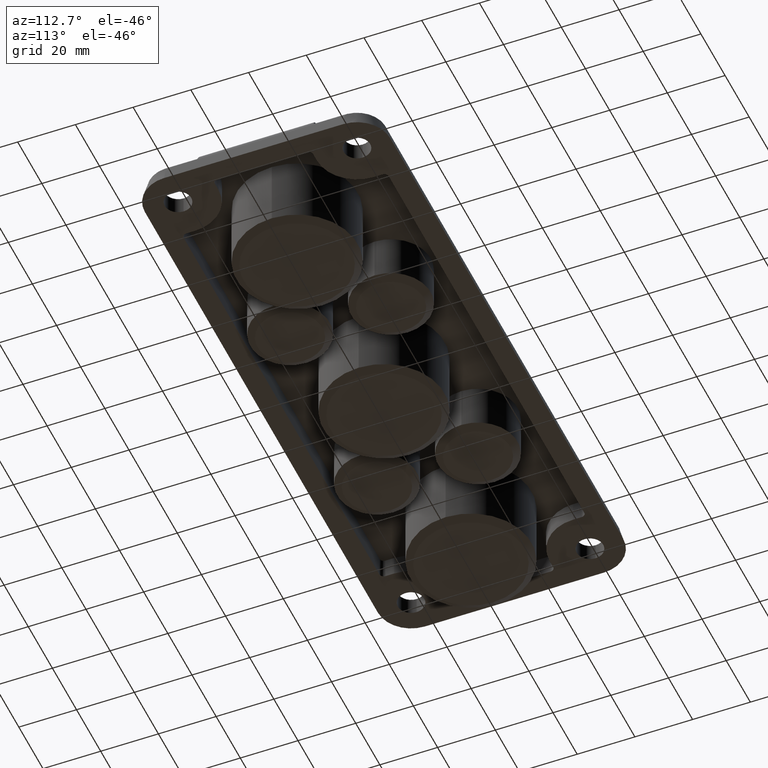
[diagram: clean part render]
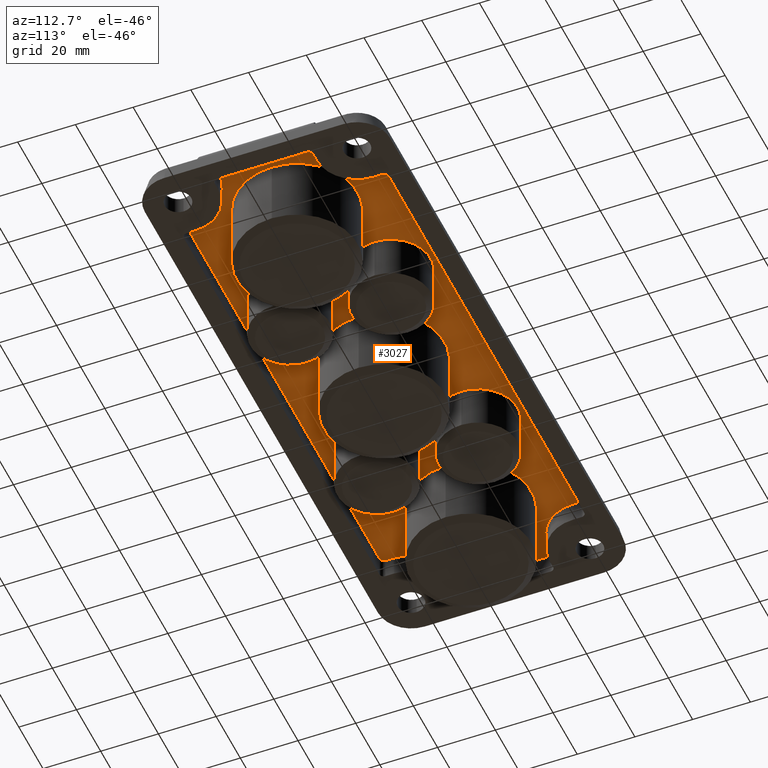
[diagram: same view with one face highlighted and labeled with its STEP entity id]
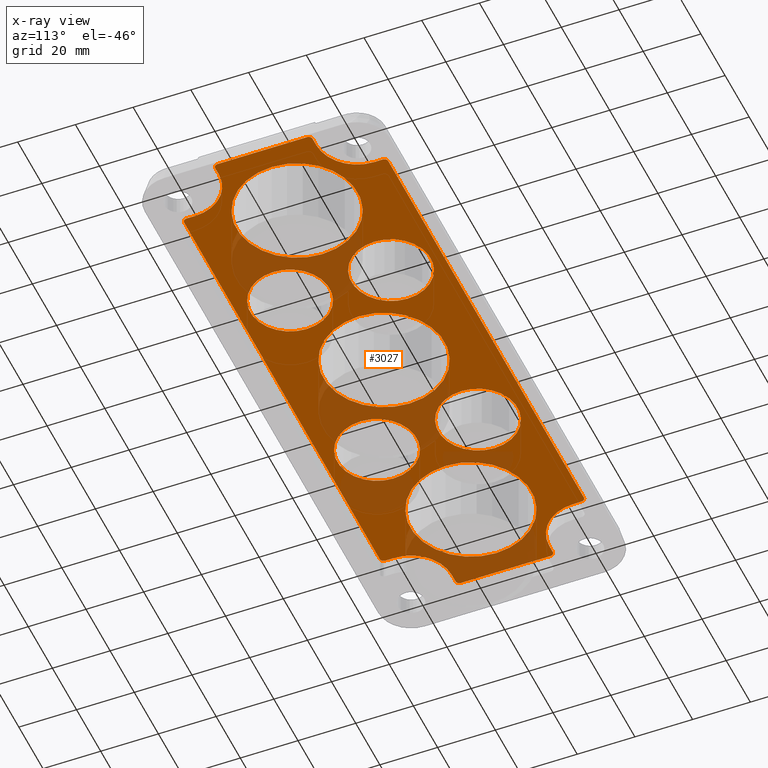
[diagram: x-ray of the same camera — body ghosted, the highlighted face saturated]
A machine part, auxiliary view. The second image highlights one B-rep face of the part: STEP entity #3027.
The next image is the same camera in x-ray: the body ghosted, the highlighted face saturated — about 29% of this face is hidden behind the body in this view.
In plain terms, the highlighted planar face has unit normal (-0, 0, -1).
Its self-contained STEP definition (entity closure, byte-faithful):
#10 = CIRCLE ( 'NONE', #1880, 13.74999999999999800 ) ;
#12 = DIRECTION ( 'NONE',  ( 4.625929269271556300E-015, 1.000000000000000000, 0.0000000000000000000 ) ) ;
#48 = CARTESIAN_POINT ( 'NONE',  ( -49.75000000000001400, -17.50000000000001100, 7.000000000000000900 ) ) ;
#49 = CIRCLE ( 'NONE', #2431, 14.12218545449751900 ) ;
#58 = DIRECTION ( 'NONE',  ( -1.000000000000000000, 0.0000000000000000000, 0.0000000000000000000 ) ) ;
#62 = EDGE_CURVE ( 'NONE', #434, #2535, #10, .T. ) ;
#86 = CIRCLE ( 'NONE', #1689, 14.12218545449751900 ) ;
#88 = DIRECTION ( 'NONE',  ( 0.0000000000000000000, -1.000000000000000000, 0.0000000000000000000 ) ) ;
#94 = LINE ( 'NONE', #390, #1280 ) ;
#100 = ORIENTED_EDGE ( 'NONE', *, *, #2618, .F. ) ;
#113 = VERTEX_POINT ( 'NONE', #3493 ) ;
#121 = DIRECTION ( 'NONE',  ( -4.625929269271567400E-015, -1.000000000000000000, 0.0000000000000000000 ) ) ;
#136 = CIRCLE ( 'NONE', #634, 1.377814545502537000 ) ;
#151 = DIRECTION ( 'NONE',  ( -1.000000000000000000, 0.0000000000000000000, 0.0000000000000000000 ) ) ;
#157 = DIRECTION ( 'NONE',  ( -1.000000000000000000, -3.469446951953611400E-015, 0.0000000000000000000 ) ) ;
#189 = EDGE_LOOP ( 'NONE', ( #1481, #599, #2038, #1383, #2303, #1949, #2044, #1434, #681, #632, #2740, #1316, #327, #2286, #1334, #748, #286, #196, #635, #1374, #2411, #733, #2052, #3254 ) ) ;
#191 = CARTESIAN_POINT ( 'NONE',  ( -96.50000000000000000, -31.00000000000000000, 7.000000000000000000 ) ) ;
#193 = DIRECTION ( 'NONE',  ( -1.000000000000000000, 0.0000000000000000000, 0.0000000000000000000 ) ) ;
#196 = ORIENTED_EDGE ( 'NONE', *, *, #3258, .F. ) ;
#199 = EDGE_CURVE ( 'NONE', #1894, #113, #222, .T. ) ;
#200 = DIRECTION ( 'NONE',  ( -0.0000000000000000000, -0.0000000000000000000, -1.000000000000000000 ) ) ;
#222 = LINE ( 'NONE', #2072, #3204 ) ;
#234 = DIRECTION ( 'NONE',  ( -0.0000000000000000000, -0.0000000000000000000, -1.000000000000000000 ) ) ;
#273 = CARTESIAN_POINT ( 'NONE',  ( 100.8778145455024900, 15.49999999999999800, 7.000000000000000000 ) ) ;
#277 = VECTOR ( 'NONE', #335, 1000.000000000000000 ) ;
#280 = CARTESIAN_POINT ( 'NONE',  ( 99.50000000000000000, -16.87781454550244200, 7.000000000000000000 ) ) ;
#286 = ORIENTED_EDGE ( 'NONE', *, *, #2893, .F. ) ;
#301 = CARTESIAN_POINT ( 'NONE',  ( -49.75000000000000000, 17.49999999999999600, 7.000000000000000900 ) ) ;
#306 = CIRCLE ( 'NONE', #486, 21.00000000000000400 ) ;
#310 = CARTESIAN_POINT ( 'NONE',  ( -72.00000000000000000, -8.817165747521116300E-015, 6.999999999999999100 ) ) ;
#327 = ORIENTED_EDGE ( 'NONE', *, *, #2199, .F. ) ;
#335 = DIRECTION ( 'NONE',  ( -4.625929269271567400E-015, 1.000000000000000000, 0.0000000000000000000 ) ) ;
#348 = CIRCLE ( 'NONE', #3056, 14.12218545449751900 ) ;
#373 = VERTEX_POINT ( 'NONE', #3552 ) ;
#376 = DIRECTION ( 'NONE',  ( -1.000000000000000000, 0.0000000000000000000, 0.0000000000000000000 ) ) ;
#383 = DIRECTION ( 'NONE',  ( 1.000000000000000000, 5.782411586589352500E-015, 0.0000000000000000000 ) ) ;
#389 = FACE_BOUND ( 'NONE', #2318, .T. ) ;
#390 = CARTESIAN_POINT ( 'NONE',  ( -100.8778145455024900, 15.49999999999999800, 7.000000000000000000 ) ) ;
#400 = VERTEX_POINT ( 'NONE', #967 ) ;
#405 = CARTESIAN_POINT ( 'NONE',  ( -81.00000000000000000, 33.99999999999995000, 7.000000000000000000 ) ) ;
#423 = CARTESIAN_POINT ( 'NONE',  ( 81.00000000000000000, 33.99999999999995000, 7.000000000000000000 ) ) ;
#430 = DIRECTION ( 'NONE',  ( -1.000000000000000000, 0.0000000000000000000, 0.0000000000000000000 ) ) ;
#431 = CARTESIAN_POINT ( 'NONE',  ( 96.50000000000000000, 16.87781454550247400, 7.000000000000000000 ) ) ;
#434 = VERTEX_POINT ( 'NONE', #2082 ) ;
#445 = EDGE_CURVE ( 'NONE', #2692, #2633, #1954, .T. ) ;
#452 = CARTESIAN_POINT ( 'NONE',  ( 50.99999999999999300, 1.138892402573055900E-014, 6.999999999999999100 ) ) ;
#482 = CARTESIAN_POINT ( 'NONE',  ( -82.37781454550250300, -33.99999999999993600, 7.000000000000000000 ) ) ;
#486 = AXIS2_PLACEMENT_3D ( 'NONE', #1745, #3163, #58 ) ;
#492 = CARTESIAN_POINT ( 'NONE',  ( 81.00000000000001400, -33.99999999999993600, 7.000000000000000000 ) ) ;
#518 = DIRECTION ( 'NONE',  ( -1.000000000000000000, 0.0000000000000000000, 0.0000000000000000000 ) ) ;
#527 = LINE ( 'NONE', #1660, #277 ) ;
#530 = VERTEX_POINT ( 'NONE', #3094 ) ;
#566 = DIRECTION ( 'NONE',  ( -1.000000000000000000, 0.0000000000000000000, 0.0000000000000000000 ) ) ;
#582 = CARTESIAN_POINT ( 'NONE',  ( 82.37781454550250300, -33.99999999999993600, 7.000000000000000000 ) ) ;
#593 = EDGE_CURVE ( 'NONE', #1544, #896, #1568, .T. ) ;
#599 = ORIENTED_EDGE ( 'NONE', *, *, #3221, .F. ) ;
#601 = CARTESIAN_POINT ( 'NONE',  ( 100.8778145455024900, 15.49999999999999800, 7.000000000000000000 ) ) ;
#603 = CARTESIAN_POINT ( 'NONE',  ( -36.00000000000001400, -17.50000000000001100, 7.000000000000000900 ) ) ;
#613 = CARTESIAN_POINT ( 'NONE',  ( 81.00000000000001400, -35.37781454550246700, 7.000000000000000000 ) ) ;
#615 = VERTEX_POINT ( 'NONE', #613 ) ;
#632 = ORIENTED_EDGE ( 'NONE', *, *, #2024, .F. ) ;
#634 = AXIS2_PLACEMENT_3D ( 'NONE', #492, #1264, #3318 ) ;
#635 = ORIENTED_EDGE ( 'NONE', *, *, #1833, .F. ) ;
#647 = CARTESIAN_POINT ( 'NONE',  ( 0.0000000000000000000, 0.0000000000000000000, 6.999999999999999100 ) ) ;
#665 = EDGE_LOOP ( 'NONE', ( #1864, #928 ) ) ;
#673 = EDGE_LOOP ( 'NONE', ( #1201, #1500 ) ) ;
#681 = ORIENTED_EDGE ( 'NONE', *, *, #2468, .F. ) ;
#682 = LINE ( 'NONE', #3222, #3226 ) ;
#687 = CARTESIAN_POINT ( 'NONE',  ( 99.50000000000000000, 15.49999999999999800, 7.000000000000000000 ) ) ;
#706 = EDGE_CURVE ( 'NONE', #3216, #2680, #2795, .T. ) ;
#716 = LINE ( 'NONE', #482, #2823 ) ;
#720 = LINE ( 'NONE', #2319, #2283 ) ;
#725 = CIRCLE ( 'NONE', #2140, 13.74999999999999800 ) ;
#733 = ORIENTED_EDGE ( 'NONE', *, *, #199, .F. ) ;
#737 = AXIS2_PLACEMENT_3D ( 'NONE', #647, #2590, #1527 ) ;
#748 = ORIENTED_EDGE ( 'NONE', *, *, #2868, .F. ) ;
#753 = EDGE_CURVE ( 'NONE', #2643, #1137, #2703, .T. ) ;
#760 = VERTEX_POINT ( 'NONE', #1610 ) ;
#763 = EDGE_CURVE ( 'NONE', #1095, #1866, #1747, .T. ) ;
#777 = DIRECTION ( 'NONE',  ( -1.000000000000000000, 0.0000000000000000000, 0.0000000000000000000 ) ) ;
#781 = ORIENTED_EDGE ( 'NONE', *, *, #62, .F. ) ;
#785 = CARTESIAN_POINT ( 'NONE',  ( -99.50000000000000000, -15.49999999999997300, 7.000000000000000000 ) ) ;
#794 = CARTESIAN_POINT ( 'NONE',  ( 22.24999999999999600, -17.50000000000001100, 7.000000000000000900 ) ) ;
#795 = VECTOR ( 'NONE', #2165, 1000.000000000000000 ) ;
#796 = VECTOR ( 'NONE', #2064, 1000.000000000000000 ) ;
#800 = VECTOR ( 'NONE', #12, 1000.000000000000000 ) ;
#801 = CARTESIAN_POINT ( 'NONE',  ( 0.0000000000000000000, 0.0000000000000000000, 6.999999999999999100 ) ) ;
#825 = CARTESIAN_POINT ( 'NONE',  ( 72.00000000000000000, 8.817165747521117800E-015, 6.999999999999999100 ) ) ;
#828 = CARTESIAN_POINT ( 'NONE',  ( -100.8778145455024700, -15.49999999999997300, 7.000000000000000000 ) ) ;
#847 = DIRECTION ( 'NONE',  ( -1.000000000000000000, 0.0000000000000000000, 0.0000000000000000000 ) ) ;
#877 = CARTESIAN_POINT ( 'NONE',  ( 35.99999999999998600, 17.50000000000000700, 7.000000000000000900 ) ) ;
#878 = CARTESIAN_POINT ( 'NONE',  ( 82.37781454550250300, -33.99999999999993600, 7.000000000000000000 ) ) ;
#896 = VERTEX_POINT ( 'NONE', #2852 ) ;
#914 = EDGE_CURVE ( 'NONE', #2254, #3541, #527, .T. ) ;
#923 = ORIENTED_EDGE ( 'NONE', *, *, #1586, .F. ) ;
#928 = ORIENTED_EDGE ( 'NONE', *, *, #763, .F. ) ;
#953 = DIRECTION ( 'NONE',  ( -1.000000000000000000, 0.0000000000000000000, 0.0000000000000000000 ) ) ;
#954 = ORIENTED_EDGE ( 'NONE', *, *, #445, .F. ) ;
#958 = CARTESIAN_POINT ( 'NONE',  ( -72.00000000000000000, -8.817165747521116300E-015, 6.999999999999999100 ) ) ;
#967 = CARTESIAN_POINT ( 'NONE',  ( -82.37781454550251700, -30.99999999999996100, 7.000000000000000000 ) ) ;
#968 = DIRECTION ( 'NONE',  ( 0.0000000000000000000, 0.0000000000000000000, 1.000000000000000000 ) ) ;
#1027 = VERTEX_POINT ( 'NONE', #2522 ) ;
#1057 = DIRECTION ( 'NONE',  ( -1.000000000000000000, 0.0000000000000000000, 0.0000000000000000000 ) ) ;
#1072 = CIRCLE ( 'NONE', #2983, 1.377814545502467500 ) ;
#1073 = DIRECTION ( 'NONE',  ( 0.0000000000000000000, 0.0000000000000000000, 1.000000000000000000 ) ) ;
#1094 = EDGE_CURVE ( 'NONE', #2535, #434, #2003, .T. ) ;
#1095 = VERTEX_POINT ( 'NONE', #1679 ) ;
#1103 = AXIS2_PLACEMENT_3D ( 'NONE', #1349, #2478, #566 ) ;
#1113 = EDGE_CURVE ( 'NONE', #896, #1544, #3582, .T. ) ;
#1117 = DIRECTION ( 'NONE',  ( -0.0000000000000000000, -0.0000000000000000000, -1.000000000000000000 ) ) ;
#1124 = DIRECTION ( 'NONE',  ( -1.000000000000000000, 0.0000000000000000000, 0.0000000000000000000 ) ) ;
#1136 = VERTEX_POINT ( 'NONE', #828 ) ;
#1137 = VERTEX_POINT ( 'NONE', #2495 ) ;
#1144 = VERTEX_POINT ( 'NONE', #2172 ) ;
#1177 = DIRECTION ( 'NONE',  ( -1.000000000000000000, 0.0000000000000000000, 0.0000000000000000000 ) ) ;
#1198 = LINE ( 'NONE', #3033, #795 ) ;
#1199 = FACE_BOUND ( 'NONE', #2844, .T. ) ;
#1201 = ORIENTED_EDGE ( 'NONE', *, *, #2678, .F. ) ;
#1202 = CIRCLE ( 'NONE', #2037, 1.377814545502537000 ) ;
#1208 = DIRECTION ( 'NONE',  ( 0.0000000000000000000, 0.0000000000000000000, 1.000000000000000000 ) ) ;
#1241 = CIRCLE ( 'NONE', #2018, 13.74999999999999800 ) ;
#1252 = AXIS2_PLACEMENT_3D ( 'NONE', #191, #200, #2109 ) ;
#1264 = DIRECTION ( 'NONE',  ( 0.0000000000000000000, 0.0000000000000000000, 1.000000000000000000 ) ) ;
#1276 = CIRCLE ( 'NONE', #2078, 1.377814545502537000 ) ;
#1280 = VECTOR ( 'NONE', #88, 1000.000000000000000 ) ;
#1282 = AXIS2_PLACEMENT_3D ( 'NONE', #801, #234, #3301 ) ;
#1316 = ORIENTED_EDGE ( 'NONE', *, *, #3362, .F. ) ;
#1329 = VERTEX_POINT ( 'NONE', #3450 ) ;
#1334 = ORIENTED_EDGE ( 'NONE', *, *, #3459, .F. ) ;
#1349 = CARTESIAN_POINT ( 'NONE',  ( 36.00000000000000000, -17.50000000000001100, 7.000000000000000900 ) ) ;
#1360 = LINE ( 'NONE', #582, #800 ) ;
#1363 = CARTESIAN_POINT ( 'NONE',  ( 100.8778145455024900, -15.49999999999997300, 7.000000000000000000 ) ) ;
#1364 = EDGE_CURVE ( 'NONE', #113, #1838, #3118, .T. ) ;
#1367 = VERTEX_POINT ( 'NONE', #3611 ) ;
#1373 = CARTESIAN_POINT ( 'NONE',  ( 82.37781454550254500, 33.99999999999995000, 7.000000000000000000 ) ) ;
#1374 = ORIENTED_EDGE ( 'NONE', *, *, #1707, .F. ) ;
#1376 = ORIENTED_EDGE ( 'NONE', *, *, #2782, .F. ) ;
#1383 = ORIENTED_EDGE ( 'NONE', *, *, #2279, .F. ) ;
#1413 = LINE ( 'NONE', #431, #796 ) ;
#1434 = ORIENTED_EDGE ( 'NONE', *, *, #1794, .F. ) ;
#1442 = VERTEX_POINT ( 'NONE', #2180 ) ;
#1444 = DIRECTION ( 'NONE',  ( -1.000000000000000000, 0.0000000000000000000, 0.0000000000000000000 ) ) ;
#1451 = CARTESIAN_POINT ( 'NONE',  ( 81.00000000000000000, 35.37781454550253100, 7.000000000000000000 ) ) ;
#1461 = EDGE_LOOP ( 'NONE', ( #2691, #3034 ) ) ;
#1463 = CIRCLE ( 'NONE', #1252, 14.12218545449751900 ) ;
#1469 = DIRECTION ( 'NONE',  ( -1.000000000000000000, 0.0000000000000000000, 0.0000000000000000000 ) ) ;
#1481 = ORIENTED_EDGE ( 'NONE', *, *, #2287, .F. ) ;
#1499 = VERTEX_POINT ( 'NONE', #878 ) ;
#1500 = ORIENTED_EDGE ( 'NONE', *, *, #1672, .F. ) ;
#1503 = CARTESIAN_POINT ( 'NONE',  ( -82.37781454550248800, 31.00000000000000000, 7.000000000000000000 ) ) ;
#1515 = CARTESIAN_POINT ( 'NONE',  ( -81.00000000000001400, -33.99999999999993600, 7.000000000000000000 ) ) ;
#1525 = DIRECTION ( 'NONE',  ( -0.0000000000000000000, -0.0000000000000000000, -1.000000000000000000 ) ) ;
#1527 = DIRECTION ( 'NONE',  ( -1.000000000000000000, 0.0000000000000000000, 0.0000000000000000000 ) ) ;
#1544 = VERTEX_POINT ( 'NONE', #3382 ) ;
#1550 = AXIS2_PLACEMENT_3D ( 'NONE', #958, #1780, #1177 ) ;
#1568 = CIRCLE ( 'NONE', #1550, 21.00000000000000400 ) ;
#1586 = EDGE_CURVE ( 'NONE', #2633, #2692, #725, .T. ) ;
#1597 = CARTESIAN_POINT ( 'NONE',  ( 82.37781454550250300, 30.99999999999998200, 7.000000000000000000 ) ) ;
#1610 = CARTESIAN_POINT ( 'NONE',  ( 93.00000000000000000, 8.817165747521117800E-015, 6.999999999999999100 ) ) ;
#1617 = DIRECTION ( 'NONE',  ( 0.0000000000000000000, 1.000000000000000000, 0.0000000000000000000 ) ) ;
#1629 = VERTEX_POINT ( 'NONE', #3407 ) ;
#1639 = DIRECTION ( 'NONE',  ( -1.000000000000000000, 0.0000000000000000000, 0.0000000000000000000 ) ) ;
#1660 = CARTESIAN_POINT ( 'NONE',  ( 82.37781454550248800, 33.99999999999995000, 7.000000000000000000 ) ) ;
#1666 = CARTESIAN_POINT ( 'NONE',  ( -36.00000000000000000, 17.49999999999999600, 7.000000000000000900 ) ) ;
#1672 = EDGE_CURVE ( 'NONE', #3037, #3549, #2332, .T. ) ;
#1679 = CARTESIAN_POINT ( 'NONE',  ( -21.00000000000000000, 2.571758278209441700E-015, 6.999999999999999100 ) ) ;
#1689 = AXIS2_PLACEMENT_3D ( 'NONE', #1859, #2712, #777 ) ;
#1707 = EDGE_CURVE ( 'NONE', #1838, #2903, #3496, .T. ) ;
#1745 = CARTESIAN_POINT ( 'NONE',  ( 72.00000000000000000, 8.817165747521117800E-015, 6.999999999999999100 ) ) ;
#1747 = CIRCLE ( 'NONE', #1282, 21.00000000000000000 ) ;
#1774 = VERTEX_POINT ( 'NONE', #280 ) ;
#1777 = VERTEX_POINT ( 'NONE', #3114 ) ;
#1780 = DIRECTION ( 'NONE',  ( -0.0000000000000000000, -0.0000000000000000000, -1.000000000000000000 ) ) ;
#1788 = AXIS2_PLACEMENT_3D ( 'NONE', #2013, #3156, #3457 ) ;
#1794 = EDGE_CURVE ( 'NONE', #1499, #1144, #1360, .T. ) ;
#1797 = CARTESIAN_POINT ( 'NONE',  ( -36.00000000000001400, -17.50000000000001100, 7.000000000000000900 ) ) ;
#1799 = AXIS2_PLACEMENT_3D ( 'NONE', #310, #2800, #847 ) ;
#1833 = EDGE_CURVE ( 'NONE', #2903, #2828, #348, .T. ) ;
#1837 = FACE_BOUND ( 'NONE', #673, .T. ) ;
#1838 = VERTEX_POINT ( 'NONE', #3083 ) ;
#1848 = VECTOR ( 'NONE', #1617, 1000.000000000000000 ) ;
#1859 = CARTESIAN_POINT ( 'NONE',  ( 96.50000000000000000, -31.00000000000000000, 7.000000000000000000 ) ) ;
#1864 = ORIENTED_EDGE ( 'NONE', *, *, #2870, .F. ) ;
#1866 = VERTEX_POINT ( 'NONE', #3438 ) ;
#1880 = AXIS2_PLACEMENT_3D ( 'NONE', #1990, #2851, #2629 ) ;
#1894 = VERTEX_POINT ( 'NONE', #1451 ) ;
#1917 = DIRECTION ( 'NONE',  ( -1.000000000000000000, 0.0000000000000000000, 0.0000000000000000000 ) ) ;
#1949 = ORIENTED_EDGE ( 'NONE', *, *, #3015, .F. ) ;
#1954 = CIRCLE ( 'NONE', #2878, 13.74999999999999800 ) ;
#1987 = CIRCLE ( 'NONE', #2606, 13.74999999999999800 ) ;
#1990 = CARTESIAN_POINT ( 'NONE',  ( 36.00000000000000000, -17.50000000000001100, 7.000000000000000900 ) ) ;
#1994 = DIRECTION ( 'NONE',  ( -0.0000000000000000000, -0.0000000000000000000, -1.000000000000000000 ) ) ;
#2003 = CIRCLE ( 'NONE', #1103, 13.74999999999999800 ) ;
#2013 = CARTESIAN_POINT ( 'NONE',  ( -96.50000000000000000, 30.99999999999998900, 7.000000000000000000 ) ) ;
#2018 = AXIS2_PLACEMENT_3D ( 'NONE', #1666, #2456, #3593 ) ;
#2020 = LINE ( 'NONE', #273, #1848 ) ;
#2021 = FACE_BOUND ( 'NONE', #3506, .T. ) ;
#2024 = EDGE_CURVE ( 'NONE', #1367, #615, #3492, .T. ) ;
#2037 = AXIS2_PLACEMENT_3D ( 'NONE', #1515, #968, #2898 ) ;
#2038 = ORIENTED_EDGE ( 'NONE', *, *, #753, .F. ) ;
#2044 = ORIENTED_EDGE ( 'NONE', *, *, #2226, .F. ) ;
#2052 = ORIENTED_EDGE ( 'NONE', *, *, #3239, .F. ) ;
#2053 = DIRECTION ( 'NONE',  ( -1.000000000000000000, 0.0000000000000000000, 0.0000000000000000000 ) ) ;
#2064 = DIRECTION ( 'NONE',  ( -1.000000000000000000, 3.469446951953611400E-015, 0.0000000000000000000 ) ) ;
#2072 = CARTESIAN_POINT ( 'NONE',  ( -81.00000000000000000, 35.37781454550253100, 7.000000000000000000 ) ) ;
#2078 = AXIS2_PLACEMENT_3D ( 'NONE', #423, #2097, #2053 ) ;
#2082 = CARTESIAN_POINT ( 'NONE',  ( 49.75000000000000000, -17.50000000000001100, 7.000000000000000900 ) ) ;
#2097 = DIRECTION ( 'NONE',  ( 0.0000000000000000000, 0.0000000000000000000, 1.000000000000000000 ) ) ;
#2109 = DIRECTION ( 'NONE',  ( -1.000000000000000000, 0.0000000000000000000, 0.0000000000000000000 ) ) ;
#2140 = AXIS2_PLACEMENT_3D ( 'NONE', #603, #2809, #1444 ) ;
#2153 = DIRECTION ( 'NONE',  ( -0.0000000000000000000, -0.0000000000000000000, -1.000000000000000000 ) ) ;
#2156 = AXIS2_PLACEMENT_3D ( 'NONE', #3588, #2738, #193 ) ;
#2165 = DIRECTION ( 'NONE',  ( 1.000000000000000000, -5.782411586589352500E-015, 0.0000000000000000000 ) ) ;
#2172 = CARTESIAN_POINT ( 'NONE',  ( 82.37781454550248800, -30.99999999999997900, 7.000000000000000000 ) ) ;
#2180 = CARTESIAN_POINT ( 'NONE',  ( 96.49999999999997200, -16.87781454550245300, 7.000000000000000000 ) ) ;
#2194 = AXIS2_PLACEMENT_3D ( 'NONE', #785, #1073, #2819 ) ;
#2199 = EDGE_CURVE ( 'NONE', #1027, #400, #1463, .T. ) ;
#2226 = EDGE_CURVE ( 'NONE', #1144, #1442, #86, .T. ) ;
#2244 = EDGE_CURVE ( 'NONE', #1329, #1027, #1198, .T. ) ;
#2254 = VERTEX_POINT ( 'NONE', #1597 ) ;
#2271 = CARTESIAN_POINT ( 'NONE',  ( -96.50000000000000000, 31.00000000000000000, 7.000000000000000000 ) ) ;
#2279 = EDGE_CURVE ( 'NONE', #2499, #2643, #2020, .T. ) ;
#2283 = VECTOR ( 'NONE', #383, 1000.000000000000000 ) ;
#2286 = ORIENTED_EDGE ( 'NONE', *, *, #2244, .F. ) ;
#2287 = EDGE_CURVE ( 'NONE', #1629, #2254, #49, .T. ) ;
#2296 = PLANE ( 'NONE',  #1788 ) ;
#2303 = ORIENTED_EDGE ( 'NONE', *, *, #3282, .F. ) ;
#2318 = EDGE_LOOP ( 'NONE', ( #3507, #3516 ) ) ;
#2319 = CARTESIAN_POINT ( 'NONE',  ( 96.50000000000000000, -16.87781454550245300, 7.000000000000000000 ) ) ;
#2324 = FACE_BOUND ( 'NONE', #2331, .T. ) ;
#2331 = EDGE_LOOP ( 'NONE', ( #923, #954 ) ) ;
#2332 = CIRCLE ( 'NONE', #2694, 13.74999999999999800 ) ;
#2411 = ORIENTED_EDGE ( 'NONE', *, *, #1364, .F. ) ;
#2431 = AXIS2_PLACEMENT_3D ( 'NONE', #3584, #2153, #1917 ) ;
#2456 = DIRECTION ( 'NONE',  ( -0.0000000000000000000, -0.0000000000000000000, -1.000000000000000000 ) ) ;
#2458 = AXIS2_PLACEMENT_3D ( 'NONE', #3571, #2971, #3256 ) ;
#2468 = EDGE_CURVE ( 'NONE', #615, #1499, #136, .T. ) ;
#2478 = DIRECTION ( 'NONE',  ( -0.0000000000000000000, -0.0000000000000000000, -1.000000000000000000 ) ) ;
#2495 = CARTESIAN_POINT ( 'NONE',  ( 99.50000000000000000, 16.87781454550246400, 7.000000000000000000 ) ) ;
#2499 = VERTEX_POINT ( 'NONE', #1363 ) ;
#2522 = CARTESIAN_POINT ( 'NONE',  ( -96.50000000000000000, -16.87781454550247800, 7.000000000000000000 ) ) ;
#2535 = VERTEX_POINT ( 'NONE', #794 ) ;
#2558 = DIRECTION ( 'NONE',  ( 0.0000000000000000000, 0.0000000000000000000, 1.000000000000000000 ) ) ;
#2590 = DIRECTION ( 'NONE',  ( -0.0000000000000000000, -0.0000000000000000000, -1.000000000000000000 ) ) ;
#2591 = DIRECTION ( 'NONE',  ( -0.0000000000000000000, -0.0000000000000000000, -1.000000000000000000 ) ) ;
#2603 = AXIS2_PLACEMENT_3D ( 'NONE', #687, #2558, #1057 ) ;
#2606 = AXIS2_PLACEMENT_3D ( 'NONE', #877, #3337, #1124 ) ;
#2616 = CARTESIAN_POINT ( 'NONE',  ( 22.24999999999998200, 17.50000000000000700, 7.000000000000000900 ) ) ;
#2618 = EDGE_CURVE ( 'NONE', #760, #3211, #2775, .T. ) ;
#2629 = DIRECTION ( 'NONE',  ( -1.000000000000000000, 0.0000000000000000000, 0.0000000000000000000 ) ) ;
#2633 = VERTEX_POINT ( 'NONE', #2797 ) ;
#2641 = VECTOR ( 'NONE', #3557, 1000.000000000000000 ) ;
#2643 = VERTEX_POINT ( 'NONE', #601 ) ;
#2663 = CARTESIAN_POINT ( 'NONE',  ( -22.24999999999999600, 17.49999999999999600, 7.000000000000000900 ) ) ;
#2678 = EDGE_CURVE ( 'NONE', #3549, #3037, #1987, .T. ) ;
#2680 = VERTEX_POINT ( 'NONE', #301 ) ;
#2691 = ORIENTED_EDGE ( 'NONE', *, *, #593, .F. ) ;
#2692 = VERTEX_POINT ( 'NONE', #48 ) ;
#2694 = AXIS2_PLACEMENT_3D ( 'NONE', #3165, #2591, #1469 ) ;
#2703 = CIRCLE ( 'NONE', #2603, 1.377814545502467500 ) ;
#2712 = DIRECTION ( 'NONE',  ( -0.0000000000000000000, -0.0000000000000000000, -1.000000000000000000 ) ) ;
#2713 = ORIENTED_EDGE ( 'NONE', *, *, #1094, .F. ) ;
#2723 = AXIS2_PLACEMENT_3D ( 'NONE', #825, #1117, #1639 ) ;
#2738 = DIRECTION ( 'NONE',  ( -0.0000000000000000000, -0.0000000000000000000, -1.000000000000000000 ) ) ;
#2740 = ORIENTED_EDGE ( 'NONE', *, *, #2975, .F. ) ;
#2775 = CIRCLE ( 'NONE', #2723, 21.00000000000000400 ) ;
#2782 = EDGE_CURVE ( 'NONE', #3211, #760, #306, .T. ) ;
#2788 = DIRECTION ( 'NONE',  ( 0.0000000000000000000, 0.0000000000000000000, 1.000000000000000000 ) ) ;
#2795 = CIRCLE ( 'NONE', #2156, 13.74999999999999800 ) ;
#2797 = CARTESIAN_POINT ( 'NONE',  ( -22.25000000000001100, -17.50000000000001100, 7.000000000000000900 ) ) ;
#2800 = DIRECTION ( 'NONE',  ( -0.0000000000000000000, -0.0000000000000000000, -1.000000000000000000 ) ) ;
#2809 = DIRECTION ( 'NONE',  ( -0.0000000000000000000, -0.0000000000000000000, -1.000000000000000000 ) ) ;
#2819 = DIRECTION ( 'NONE',  ( -1.000000000000000000, 0.0000000000000000000, 0.0000000000000000000 ) ) ;
#2823 = VECTOR ( 'NONE', #3563, 1000.000000000000000 ) ;
#2828 = VERTEX_POINT ( 'NONE', #3122 ) ;
#2832 = VECTOR ( 'NONE', #121, 1000.000000000000000 ) ;
#2844 = EDGE_LOOP ( 'NONE', ( #781, #2713 ) ) ;
#2851 = DIRECTION ( 'NONE',  ( -0.0000000000000000000, -0.0000000000000000000, -1.000000000000000000 ) ) ;
#2852 = CARTESIAN_POINT ( 'NONE',  ( -93.00000000000000000, -6.245407469311674200E-015, 6.999999999999999100 ) ) ;
#2868 = EDGE_CURVE ( 'NONE', #1777, #1136, #94, .T. ) ;
#2870 = EDGE_CURVE ( 'NONE', #1866, #1095, #3194, .T. ) ;
#2878 = AXIS2_PLACEMENT_3D ( 'NONE', #1797, #1525, #151 ) ;
#2893 = EDGE_CURVE ( 'NONE', #530, #1777, #1072, .T. ) ;
#2898 = DIRECTION ( 'NONE',  ( -1.000000000000000000, 0.0000000000000000000, 0.0000000000000000000 ) ) ;
#2903 = VERTEX_POINT ( 'NONE', #1503 ) ;
#2971 = DIRECTION ( 'NONE',  ( 0.0000000000000000000, 0.0000000000000000000, 1.000000000000000000 ) ) ;
#2975 = EDGE_CURVE ( 'NONE', #373, #1367, #1202, .T. ) ;
#2983 = AXIS2_PLACEMENT_3D ( 'NONE', #3499, #1208, #953 ) ;
#2989 = FACE_BOUND ( 'NONE', #665, .T. ) ;
#3015 = EDGE_CURVE ( 'NONE', #1442, #1774, #720, .T. ) ;
#3027 = ADVANCED_FACE ( 'NONE', ( #2021, #3527, #2989, #1837, #1199, #2324, #389, #3447 ), #2296, .T. ) ;
#3028 = CIRCLE ( 'NONE', #2194, 1.377814545502467500 ) ;
#3033 = CARTESIAN_POINT ( 'NONE',  ( -96.50000000000000000, -16.87781454550245300, 7.000000000000000000 ) ) ;
#3034 = ORIENTED_EDGE ( 'NONE', *, *, #1113, .F. ) ;
#3037 = VERTEX_POINT ( 'NONE', #2616 ) ;
#3056 = AXIS2_PLACEMENT_3D ( 'NONE', #2271, #1994, #376 ) ;
#3083 = CARTESIAN_POINT ( 'NONE',  ( -82.37781454550248800, 33.99999999999995000, 7.000000000000000000 ) ) ;
#3094 = CARTESIAN_POINT ( 'NONE',  ( -99.50000000000000000, 16.87781454550247100, 7.000000000000000000 ) ) ;
#3097 = CARTESIAN_POINT ( 'NONE',  ( 49.74999999999998600, 17.50000000000000700, 7.000000000000000900 ) ) ;
#3114 = CARTESIAN_POINT ( 'NONE',  ( -100.8778145455024900, 15.49999999999999800, 7.000000000000000000 ) ) ;
#3118 = CIRCLE ( 'NONE', #3590, 1.377814545502537000 ) ;
#3122 = CARTESIAN_POINT ( 'NONE',  ( -96.49999999999998600, 16.87781454550247400, 7.000000000000000000 ) ) ;
#3146 = CIRCLE ( 'NONE', #2458, 1.377814545502467500 ) ;
#3156 = DIRECTION ( 'NONE',  ( -0.0000000000000000000, 0.0000000000000000000, -1.000000000000000000 ) ) ;
#3163 = DIRECTION ( 'NONE',  ( -0.0000000000000000000, -0.0000000000000000000, -1.000000000000000000 ) ) ;
#3165 = CARTESIAN_POINT ( 'NONE',  ( 35.99999999999998600, 17.50000000000000700, 7.000000000000000900 ) ) ;
#3188 = CARTESIAN_POINT ( 'NONE',  ( -82.37781454550248800, 33.99999999999995000, 7.000000000000000000 ) ) ;
#3194 = CIRCLE ( 'NONE', #737, 21.00000000000000000 ) ;
#3204 = VECTOR ( 'NONE', #430, 1000.000000000000000 ) ;
#3211 = VERTEX_POINT ( 'NONE', #452 ) ;
#3216 = VERTEX_POINT ( 'NONE', #2663 ) ;
#3221 = EDGE_CURVE ( 'NONE', #1137, #1629, #1413, .T. ) ;
#3222 = CARTESIAN_POINT ( 'NONE',  ( -96.50000000000000000, 16.87781454550247400, 7.000000000000000000 ) ) ;
#3226 = VECTOR ( 'NONE', #157, 1000.000000000000000 ) ;
#3239 = EDGE_CURVE ( 'NONE', #3541, #1894, #1276, .T. ) ;
#3249 = CARTESIAN_POINT ( 'NONE',  ( -81.00000000000001400, -35.37781454550251700, 7.000000000000000000 ) ) ;
#3254 = ORIENTED_EDGE ( 'NONE', *, *, #914, .F. ) ;
#3256 = DIRECTION ( 'NONE',  ( -1.000000000000000000, 0.0000000000000000000, 0.0000000000000000000 ) ) ;
#3258 = EDGE_CURVE ( 'NONE', #2828, #530, #682, .T. ) ;
#3282 = EDGE_CURVE ( 'NONE', #1774, #2499, #3146, .T. ) ;
#3301 = DIRECTION ( 'NONE',  ( -1.000000000000000000, 0.0000000000000000000, 0.0000000000000000000 ) ) ;
#3318 = DIRECTION ( 'NONE',  ( -1.000000000000000000, 0.0000000000000000000, 0.0000000000000000000 ) ) ;
#3337 = DIRECTION ( 'NONE',  ( -0.0000000000000000000, -0.0000000000000000000, -1.000000000000000000 ) ) ;
#3362 = EDGE_CURVE ( 'NONE', #400, #373, #716, .T. ) ;
#3382 = CARTESIAN_POINT ( 'NONE',  ( -50.99999999999999300, -8.817165747521116300E-015, 6.999999999999999100 ) ) ;
#3407 = CARTESIAN_POINT ( 'NONE',  ( 96.50000000000000000, 16.87781454550247400, 7.000000000000000000 ) ) ;
#3435 = EDGE_CURVE ( 'NONE', #2680, #3216, #1241, .T. ) ;
#3438 = CARTESIAN_POINT ( 'NONE',  ( 21.00000000000000000, 0.0000000000000000000, 6.999999999999999100 ) ) ;
#3447 = FACE_OUTER_BOUND ( 'NONE', #189, .T. ) ;
#3450 = CARTESIAN_POINT ( 'NONE',  ( -99.50000000000000000, -16.87781454550243500, 7.000000000000000000 ) ) ;
#3457 = DIRECTION ( 'NONE',  ( -1.000000000000000000, 0.0000000000000000000, 0.0000000000000000000 ) ) ;
#3459 = EDGE_CURVE ( 'NONE', #1136, #1329, #3028, .T. ) ;
#3492 = LINE ( 'NONE', #3249, #2641 ) ;
#3493 = CARTESIAN_POINT ( 'NONE',  ( -81.00000000000000000, 35.37781454550248100, 7.000000000000000000 ) ) ;
#3496 = LINE ( 'NONE', #3188, #2832 ) ;
#3499 = CARTESIAN_POINT ( 'NONE',  ( -99.50000000000000000, 15.49999999999999800, 7.000000000000000000 ) ) ;
#3506 = EDGE_LOOP ( 'NONE', ( #100, #1376 ) ) ;
#3507 = ORIENTED_EDGE ( 'NONE', *, *, #706, .F. ) ;
#3516 = ORIENTED_EDGE ( 'NONE', *, *, #3435, .F. ) ;
#3527 = FACE_BOUND ( 'NONE', #1461, .T. ) ;
#3541 = VERTEX_POINT ( 'NONE', #1373 ) ;
#3549 = VERTEX_POINT ( 'NONE', #3097 ) ;
#3552 = CARTESIAN_POINT ( 'NONE',  ( -82.37781454550255900, -33.99999999999993600, 7.000000000000000000 ) ) ;
#3557 = DIRECTION ( 'NONE',  ( 1.000000000000000000, 0.0000000000000000000, 0.0000000000000000000 ) ) ;
#3563 = DIRECTION ( 'NONE',  ( 4.625929269271556300E-015, -1.000000000000000000, 0.0000000000000000000 ) ) ;
#3571 = CARTESIAN_POINT ( 'NONE',  ( 99.50000000000000000, -15.49999999999997300, 7.000000000000000000 ) ) ;
#3582 = CIRCLE ( 'NONE', #1799, 21.00000000000000400 ) ;
#3584 = CARTESIAN_POINT ( 'NONE',  ( 96.50000000000000000, 31.00000000000000000, 7.000000000000000000 ) ) ;
#3588 = CARTESIAN_POINT ( 'NONE',  ( -36.00000000000000000, 17.49999999999999600, 7.000000000000000900 ) ) ;
#3590 = AXIS2_PLACEMENT_3D ( 'NONE', #405, #2788, #518 ) ;
#3593 = DIRECTION ( 'NONE',  ( -1.000000000000000000, 0.0000000000000000000, 0.0000000000000000000 ) ) ;
#3611 = CARTESIAN_POINT ( 'NONE',  ( -81.00000000000001400, -35.37781454550251700, 7.000000000000000000 ) ) ;